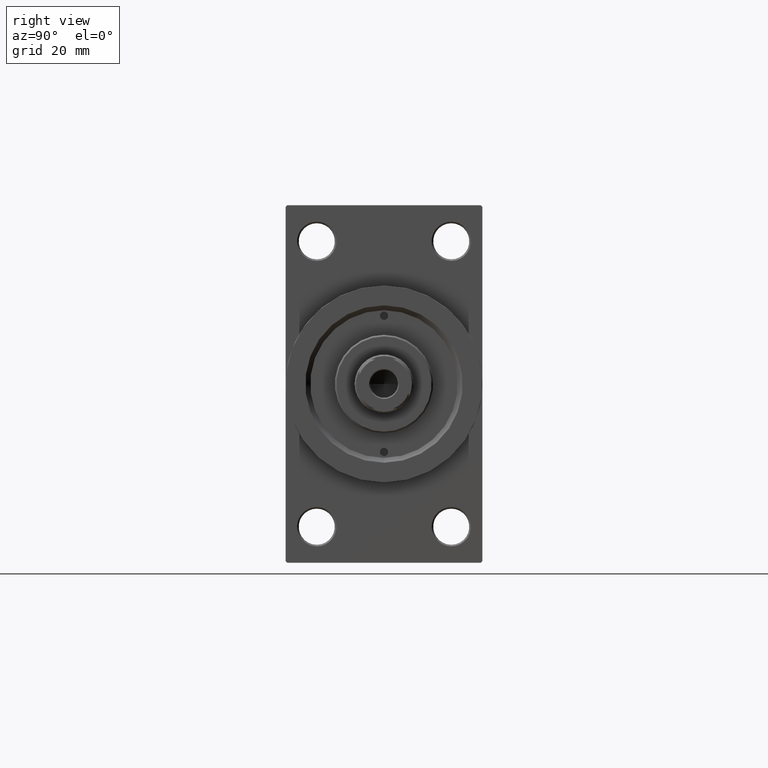
[diagram: clean part render]
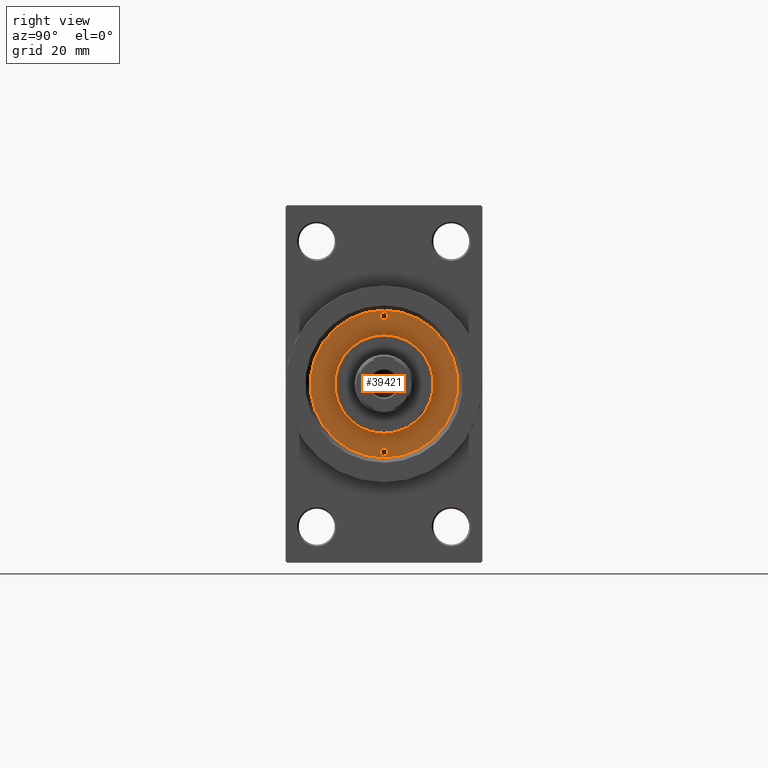
[diagram: same view with one face highlighted and labeled with its STEP entity id]
A machine part, right view. The second image highlights one B-rep face of the part: STEP entity #39421.
In plain terms, the highlighted planar face has unit normal (1, -0, -0).
Its self-contained STEP definition (entity closure, byte-faithful):
#252 = CARTESIAN_POINT ( 'NONE',  ( 20.75000000000000000, 0.000000000000000000, 43.25999999999999801 ) ) ;
#1224 = AXIS2_PLACEMENT_3D ( 'NONE', #25796, #18350, #40442 ) ;
#1462 = CARTESIAN_POINT ( 'NONE',  ( 15.00000000000000000, 1.836970198721029589E-15, 43.25999999999999801 ) ) ;
#1606 = FACE_BOUND ( 'NONE', #24971, .T. ) ;
#2091 = CARTESIAN_POINT ( 'NONE',  ( 0.000000000000000000, 0.000000000000000000, 43.25999999999999801 ) ) ;
#2636 = AXIS2_PLACEMENT_3D ( 'NONE', #3408, #18040, #40369 ) ;
#2708 = CARTESIAN_POINT ( 'NONE',  ( -15.00000000000000000, 0.000000000000000000, 43.25999999999999801 ) ) ;
#3000 = ORIENTED_EDGE ( 'NONE', *, *, #42846, .F. ) ;
#3408 = CARTESIAN_POINT ( 'NONE',  ( 0.000000000000000000, 0.000000000000000000, 43.25999999999999801 ) ) ;
#4577 = VERTEX_POINT ( 'NONE', #45400 ) ;
#4925 = CIRCLE ( 'NONE', #33230, 15.00000000000000000 ) ;
#5212 = FACE_BOUND ( 'NONE', #16781, .T. ) ;
#5426 = ORIENTED_EDGE ( 'NONE', *, *, #10870, .T. ) ;
#6391 = VERTEX_POINT ( 'NONE', #46141 ) ;
#7004 = VERTEX_POINT ( 'NONE', #2708 ) ;
#7605 = ORIENTED_EDGE ( 'NONE', *, *, #20299, .F. ) ;
#7747 = EDGE_CURVE ( 'NONE', #16809, #4577, #15642, .T. ) ;
#8134 = EDGE_CURVE ( 'NONE', #34812, #6391, #25611, .T. ) ;
#9770 = FACE_OUTER_BOUND ( 'NONE', #44673, .T. ) ;
#10870 = EDGE_CURVE ( 'NONE', #6391, #34812, #32626, .T. ) ;
#11084 = VERTEX_POINT ( 'NONE', #46878 ) ;
#12868 = AXIS2_PLACEMENT_3D ( 'NONE', #23439, #16714, #27990 ) ;
#12891 = ORIENTED_EDGE ( 'NONE', *, *, #35767, .F. ) ;
#12945 = CIRCLE ( 'NONE', #39784, 1.249999999999997558 ) ;
#13808 = DIRECTION ( 'NONE',  ( -0.000000000000000000, -0.000000000000000000, 1.000000000000000000 ) ) ;
#14232 = CARTESIAN_POINT ( 'NONE',  ( 20.75000000000000000, 0.000000000000000000, 43.25999999999999801 ) ) ;
#14695 = DIRECTION ( 'NONE',  ( 1.000000000000000000, 0.000000000000000000, 0.000000000000000000 ) ) ;
#15250 = EDGE_LOOP ( 'NONE', ( #39358, #12891 ) ) ;
#15642 = CIRCLE ( 'NONE', #30234, 1.249999999999997558 ) ;
#16225 = CARTESIAN_POINT ( 'NONE',  ( -22.00000000000000000, 1.530808498934188612E-16, 43.25999999999999801 ) ) ;
#16477 = CARTESIAN_POINT ( 'NONE',  ( -20.75000000000000000, 0.000000000000000000, 43.25999999999999801 ) ) ;
#16714 = DIRECTION ( 'NONE',  ( 0.000000000000000000, 0.000000000000000000, 1.000000000000000000 ) ) ;
#16733 = DIRECTION ( 'NONE',  ( 0.000000000000000000, 0.000000000000000000, 1.000000000000000000 ) ) ;
#16757 = DIRECTION ( 'NONE',  ( -0.000000000000000000, -0.000000000000000000, 1.000000000000000000 ) ) ;
#16781 = EDGE_LOOP ( 'NONE', ( #29912, #38816 ) ) ;
#16809 = VERTEX_POINT ( 'NONE', #16225 ) ;
#18040 = DIRECTION ( 'NONE',  ( 0.000000000000000000, 0.000000000000000000, 1.000000000000000000 ) ) ;
#18350 = DIRECTION ( 'NONE',  ( 0.000000000000000000, 0.000000000000000000, 1.000000000000000000 ) ) ;
#20112 = CARTESIAN_POINT ( 'NONE',  ( -20.75000000000000000, 0.000000000000000000, 43.25999999999999801 ) ) ;
#20299 = EDGE_CURVE ( 'NONE', #33789, #7004, #35850, .T. ) ;
#23439 = CARTESIAN_POINT ( 'NONE',  ( 0.000000000000000000, 0.000000000000000000, 43.25999999999999801 ) ) ;
#23684 = FACE_BOUND ( 'NONE', #15250, .T. ) ;
#24146 = DIRECTION ( 'NONE',  ( 1.000000000000000000, 0.000000000000000000, 0.000000000000000000 ) ) ;
#24971 = EDGE_LOOP ( 'NONE', ( #3000, #7605 ) ) ;
#25611 = CIRCLE ( 'NONE', #2636, 22.50000000000000355 ) ;
#25796 = CARTESIAN_POINT ( 'NONE',  ( 0.000000000000000000, 0.000000000000000000, 43.25999999999999801 ) ) ;
#26196 = CIRCLE ( 'NONE', #39230, 1.249999999999997558 ) ;
#26517 = EDGE_CURVE ( 'NONE', #4577, #16809, #26196, .T. ) ;
#27617 = EDGE_CURVE ( 'NONE', #11084, #28365, #12945, .T. ) ;
#27990 = DIRECTION ( 'NONE',  ( 1.000000000000000000, 0.000000000000000000, 0.000000000000000000 ) ) ;
#28002 = DIRECTION ( 'NONE',  ( 1.000000000000000000, 0.000000000000000000, -0.000000000000000000 ) ) ;
#28365 = VERTEX_POINT ( 'NONE', #29112 ) ;
#29112 = CARTESIAN_POINT ( 'NONE',  ( 19.50000000000000355, 1.530808498934188612E-16, 43.25999999999999801 ) ) ;
#29525 = DIRECTION ( 'NONE',  ( 1.000000000000000000, 0.000000000000000000, 0.000000000000000000 ) ) ;
#29763 = DIRECTION ( 'NONE',  ( -0.000000000000000000, -0.000000000000000000, 1.000000000000000000 ) ) ;
#29912 = ORIENTED_EDGE ( 'NONE', *, *, #26517, .F. ) ;
#30234 = AXIS2_PLACEMENT_3D ( 'NONE', #20112, #16757, #38355 ) ;
#31361 = DIRECTION ( 'NONE',  ( 1.000000000000000000, 0.000000000000000000, 0.000000000000000000 ) ) ;
#32626 = CIRCLE ( 'NONE', #1224, 22.50000000000000355 ) ;
#33025 = CIRCLE ( 'NONE', #42233, 1.249999999999997558 ) ;
#33230 = AXIS2_PLACEMENT_3D ( 'NONE', #39284, #16733, #31361 ) ;
#33789 = VERTEX_POINT ( 'NONE', #1462 ) ;
#34812 = VERTEX_POINT ( 'NONE', #36430 ) ;
#35767 = EDGE_CURVE ( 'NONE', #28365, #11084, #33025, .T. ) ;
#35850 = CIRCLE ( 'NONE', #12868, 15.00000000000000000 ) ;
#36430 = CARTESIAN_POINT ( 'NONE',  ( -22.50000000000000355, 0.000000000000000000, 43.25999999999999801 ) ) ;
#38355 = DIRECTION ( 'NONE',  ( 1.000000000000000000, 0.000000000000000000, 0.000000000000000000 ) ) ;
#38816 = ORIENTED_EDGE ( 'NONE', *, *, #7747, .F. ) ;
#39230 = AXIS2_PLACEMENT_3D ( 'NONE', #16477, #13808, #24146 ) ;
#39284 = CARTESIAN_POINT ( 'NONE',  ( 0.000000000000000000, 0.000000000000000000, 43.25999999999999801 ) ) ;
#39294 = AXIS2_PLACEMENT_3D ( 'NONE', #2091, #46243, #28002 ) ;
#39358 = ORIENTED_EDGE ( 'NONE', *, *, #27617, .F. ) ;
#39421 = ADVANCED_FACE ( 'NONE', ( #5212, #23684, #1606, #9770 ), #41933, .T. ) ;
#39784 = AXIS2_PLACEMENT_3D ( 'NONE', #14232, #43520, #14695 ) ;
#40369 = DIRECTION ( 'NONE',  ( 1.000000000000000000, 0.000000000000000000, 0.000000000000000000 ) ) ;
#40442 = DIRECTION ( 'NONE',  ( 1.000000000000000000, 0.000000000000000000, 0.000000000000000000 ) ) ;
#41933 = PLANE ( 'NONE',  #39294 ) ;
#42021 = ORIENTED_EDGE ( 'NONE', *, *, #8134, .T. ) ;
#42233 = AXIS2_PLACEMENT_3D ( 'NONE', #252, #29763, #29525 ) ;
#42846 = EDGE_CURVE ( 'NONE', #7004, #33789, #4925, .T. ) ;
#43520 = DIRECTION ( 'NONE',  ( -0.000000000000000000, -0.000000000000000000, 1.000000000000000000 ) ) ;
#44673 = EDGE_LOOP ( 'NONE', ( #42021, #5426 ) ) ;
#45400 = CARTESIAN_POINT ( 'NONE',  ( -19.50000000000000355, 0.000000000000000000, 43.25999999999999801 ) ) ;
#46141 = CARTESIAN_POINT ( 'NONE',  ( 22.50000000000000355, 2.755455298081545172E-15, 43.25999999999999801 ) ) ;
#46243 = DIRECTION ( 'NONE',  ( 0.000000000000000000, 0.000000000000000000, 1.000000000000000000 ) ) ;
#46878 = CARTESIAN_POINT ( 'NONE',  ( 22.00000000000000000, 0.000000000000000000, 43.25999999999999801 ) ) ;